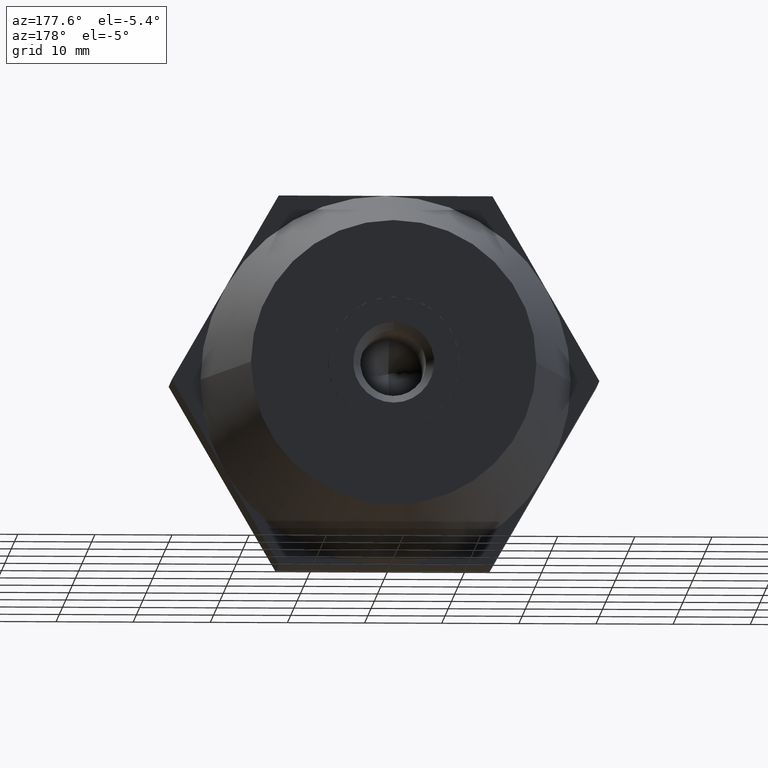
[diagram: clean part render]
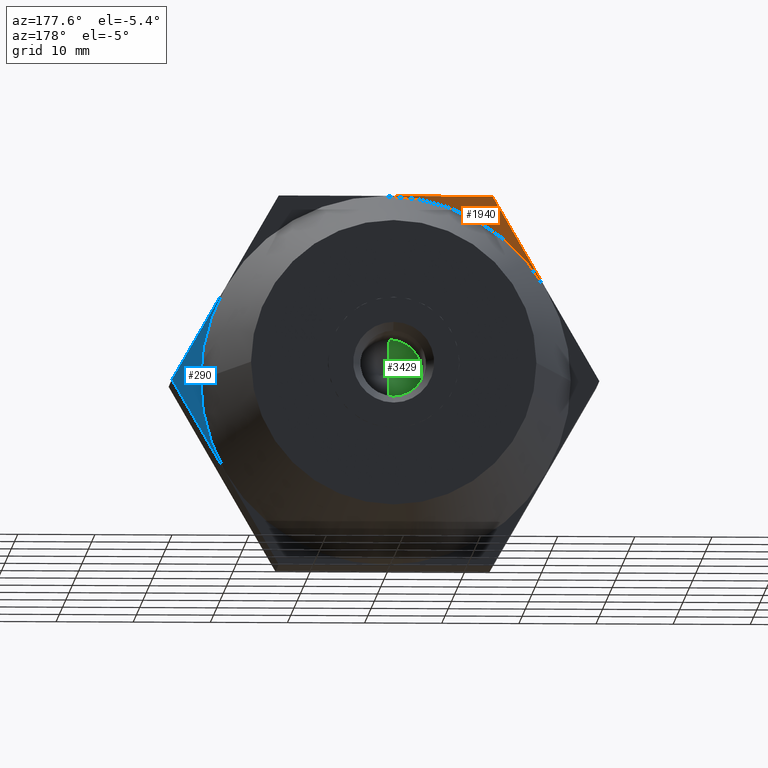
[diagram: same view with three faces highlighted in distinct colors, each labeled with its STEP entity id]
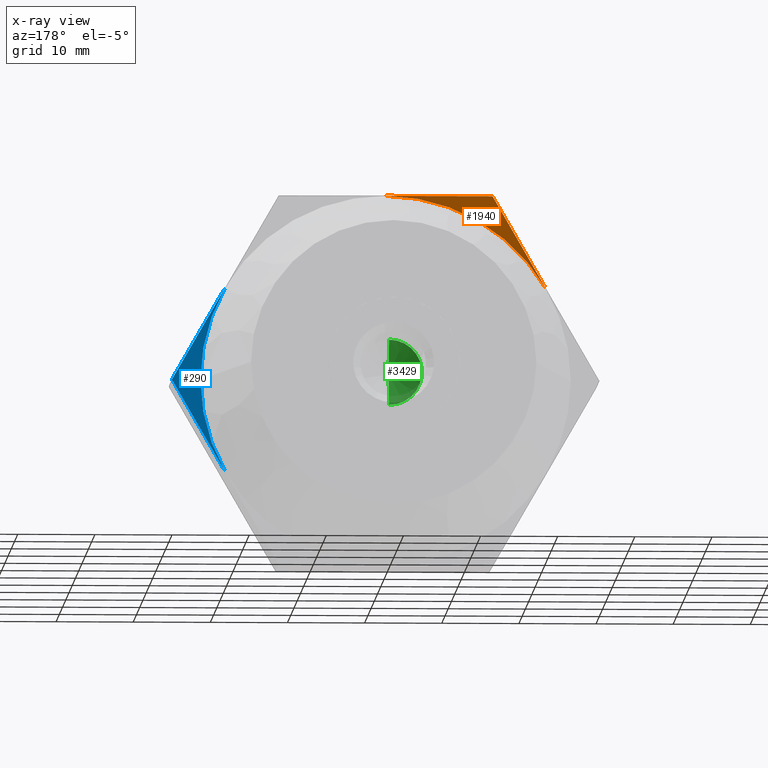
[diagram: x-ray of the same camera — body ghosted, the three highlighted faces saturated]
A machine part, auxiliary view with three faces highlighted in distinct colors.
The next image is the same camera in x-ray (body ghosted, the three faces saturated) — at least one of them is partly hidden behind the body in this view.
Their STEP definitions:

[orange] entity #1940 — the highlighted planar face has unit normal (0, 1, 0).
#68 = ORIENTED_EDGE ( 'NONE', *, *, #995, .F. ) ;
#168 = DIRECTION ( 'NONE',  ( -1.000000000000000000, -1.084202172485504400E-016, 0.0000000000000000000 ) ) ;
#574 = ORIENTED_EDGE ( 'NONE', *, *, #3101, .T. ) ;
#581 = CARTESIAN_POINT ( 'NONE',  ( -13.85640646055101900, 5.000000000000000000, 24.00000000000000000 ) ) ;
#995 = EDGE_CURVE ( 'NONE', #2463, #2596, #1623, .T. ) ;
#1044 = LINE ( 'NONE', #581, #2575 ) ;
#1106 = DIRECTION ( 'NONE',  ( -1.224646799147352000E-016, 1.000000000000000000, 0.0000000000000000000 ) ) ;
#1306 = VERTEX_POINT ( 'NONE', #2998 ) ;
#1409 = CARTESIAN_POINT ( 'NONE',  ( -27.71281292110205300, 5.000000000000000000, 3.597623130494369400E-015 ) ) ;
#1587 = PLANE ( 'NONE',  #1799 ) ;
#1623 = CIRCLE ( 'NONE', #3272, 24.00000000000000000 ) ;
#1630 = FACE_OUTER_BOUND ( 'NONE', #3138, .T. ) ;
#1799 = AXIS2_PLACEMENT_3D ( 'NONE', #1870, #1885, #2502 ) ;
#1838 = DIRECTION ( 'NONE',  ( 1.000000000000000000, 0.0000000000000000000, 1.251928832280965700E-016 ) ) ;
#1870 = CARTESIAN_POINT ( 'NONE',  ( 0.0000000000000000000, 5.000000000000000000, 0.0000000000000000000 ) ) ;
#1882 = CARTESIAN_POINT ( 'NONE',  ( -3.004629197474319600E-015, 5.000000000000000000, 24.00000000000000000 ) ) ;
#1885 = DIRECTION ( 'NONE',  ( 0.0000000000000000000, 1.000000000000000000, 0.0000000000000000000 ) ) ;
#1940 = ADVANCED_FACE ( 'NONE', ( #1630 ), #1587, .T. ) ;
#1987 = LINE ( 'NONE', #1409, #3871 ) ;
#2463 = VERTEX_POINT ( 'NONE', #2726 ) ;
#2502 = DIRECTION ( 'NONE',  ( 0.0000000000000000000, 0.0000000000000000000, 1.000000000000000000 ) ) ;
#2575 = VECTOR ( 'NONE', #1838, 1000.000000000000000 ) ;
#2596 = VERTEX_POINT ( 'NONE', #1882 ) ;
#2726 = CARTESIAN_POINT ( 'NONE',  ( -20.78460969082655300, 5.000000000000000000, 12.00000000000000000 ) ) ;
#2926 = CARTESIAN_POINT ( 'NONE',  ( 3.061616997868379900E-015, 5.000000000000000000, 0.0000000000000000000 ) ) ;
#2942 = DIRECTION ( 'NONE',  ( 0.4999999999999998900, 0.0000000000000000000, 0.8660254037844387100 ) ) ;
#2998 = CARTESIAN_POINT ( 'NONE',  ( -13.85640646055101900, 5.000000000000000000, 24.00000000000000000 ) ) ;
#3101 = EDGE_CURVE ( 'NONE', #2463, #1306, #1987, .T. ) ;
#3138 = EDGE_LOOP ( 'NONE', ( #68, #574, #3891 ) ) ;
#3180 = EDGE_CURVE ( 'NONE', #1306, #2596, #1044, .T. ) ;
#3272 = AXIS2_PLACEMENT_3D ( 'NONE', #2926, #1106, #168 ) ;
#3871 = VECTOR ( 'NONE', #2942, 1000.000000000000000 ) ;
#3891 = ORIENTED_EDGE ( 'NONE', *, *, #3180, .T. ) ;

[blue] entity #290 — the highlighted planar face has unit normal (0, 1, 0).
#37 = VERTEX_POINT ( 'NONE', #467 ) ;
#92 = CARTESIAN_POINT ( 'NONE',  ( 24.00000000000000400, 5.000000000000003600, 0.0000000000000000000 ) ) ;
#145 = CARTESIAN_POINT ( 'NONE',  ( 0.0000000000000000000, 5.000000000000000000, 0.0000000000000000000 ) ) ;
#176 = DIRECTION ( 'NONE',  ( -1.000000000000000000, -1.084202172485504400E-016, 0.0000000000000000000 ) ) ;
#242 = DIRECTION ( 'NONE',  ( -0.4999999999999998900, 0.0000000000000000000, -0.8660254037844387100 ) ) ;
#290 = ADVANCED_FACE ( 'NONE', ( #3295 ), #1967, .T. ) ;
#313 = EDGE_CURVE ( 'NONE', #2299, #2568, #3882, .T. ) ;
#366 = EDGE_CURVE ( 'NONE', #37, #2299, #2666, .T. ) ;
#452 = CARTESIAN_POINT ( 'NONE',  ( 13.85640646055101900, 5.000000000000000000, 24.00000000000000000 ) ) ;
#467 = CARTESIAN_POINT ( 'NONE',  ( 20.78460969082655300, 5.000000000000000000, 12.00000000000000000 ) ) ;
#666 = ORIENTED_EDGE ( 'NONE', *, *, #313, .F. ) ;
#747 = DIRECTION ( 'NONE',  ( 0.4999999999999998900, 0.0000000000000000000, -0.8660254037844387100 ) ) ;
#751 = DIRECTION ( 'NONE',  ( 0.0000000000000000000, 1.000000000000000000, 0.0000000000000000000 ) ) ;
#928 = ORIENTED_EDGE ( 'NONE', *, *, #2723, .T. ) ;
#1088 = LINE ( 'NONE', #452, #3328 ) ;
#1149 = DIRECTION ( 'NONE',  ( -1.000000000000000000, -1.084202172485504400E-016, 0.0000000000000000000 ) ) ;
#1165 = EDGE_CURVE ( 'NONE', #3330, #2568, #3959, .T. ) ;
#1271 = CARTESIAN_POINT ( 'NONE',  ( 20.78460969082650000, 5.000000000000000000, -12.00000000000000000 ) ) ;
#1292 = CARTESIAN_POINT ( 'NONE',  ( 27.71281292110205300, 5.000000000000000000, -1.024206980640409900E-014 ) ) ;
#1370 = AXIS2_PLACEMENT_3D ( 'NONE', #3238, #2318, #176 ) ;
#1520 = CARTESIAN_POINT ( 'NONE',  ( 3.061616997868379900E-015, 5.000000000000000000, 0.0000000000000000000 ) ) ;
#1967 = PLANE ( 'NONE',  #3435 ) ;
#2188 = ORIENTED_EDGE ( 'NONE', *, *, #366, .F. ) ;
#2264 = AXIS2_PLACEMENT_3D ( 'NONE', #1520, #3603, #1149 ) ;
#2299 = VERTEX_POINT ( 'NONE', #92 ) ;
#2318 = DIRECTION ( 'NONE',  ( -1.224646799147352000E-016, 1.000000000000000000, 0.0000000000000000000 ) ) ;
#2394 = EDGE_LOOP ( 'NONE', ( #2188, #928, #3050, #666 ) ) ;
#2568 = VERTEX_POINT ( 'NONE', #1271 ) ;
#2666 = CIRCLE ( 'NONE', #2264, 24.00000000000000000 ) ;
#2723 = EDGE_CURVE ( 'NONE', #37, #3330, #1088, .T. ) ;
#2886 = DIRECTION ( 'NONE',  ( 0.0000000000000000000, 0.0000000000000000000, 1.000000000000000000 ) ) ;
#2946 = VECTOR ( 'NONE', #242, 1000.000000000000000 ) ;
#3050 = ORIENTED_EDGE ( 'NONE', *, *, #1165, .T. ) ;
#3238 = CARTESIAN_POINT ( 'NONE',  ( 3.061616997868379900E-015, 5.000000000000000000, 0.0000000000000000000 ) ) ;
#3252 = CARTESIAN_POINT ( 'NONE',  ( 27.71281292110205300, 5.000000000000000000, -1.024206980640409900E-014 ) ) ;
#3295 = FACE_OUTER_BOUND ( 'NONE', #2394, .T. ) ;
#3328 = VECTOR ( 'NONE', #747, 1000.000000000000000 ) ;
#3330 = VERTEX_POINT ( 'NONE', #1292 ) ;
#3435 = AXIS2_PLACEMENT_3D ( 'NONE', #145, #751, #2886 ) ;
#3603 = DIRECTION ( 'NONE',  ( -1.224646799147352000E-016, 1.000000000000000000, 0.0000000000000000000 ) ) ;
#3882 = CIRCLE ( 'NONE', #1370, 24.00000000000000000 ) ;
#3959 = LINE ( 'NONE', #3252, #2946 ) ;

[green] entity #3429 — the highlighted conical surface has half-angle 59 deg.
#27 = FACE_OUTER_BOUND ( 'NONE', #1678, .T. ) ;
#70 = AXIS2_PLACEMENT_3D ( 'NONE', #1268, #3708, #3084 ) ;
#370 = VECTOR ( 'NONE', #879, 999.9999999999998900 ) ;
#460 = LINE ( 'NONE', #3311, #370 ) ;
#544 = EDGE_CURVE ( 'NONE', #2590, #3008, #1949, .T. ) ;
#879 = DIRECTION ( 'NONE',  ( 0.0000000000000000000, 0.5150380749100549300, 0.8571673007021118900 ) ) ;
#1097 = EDGE_CURVE ( 'NONE', #2474, #2590, #3336, .T. ) ;
#1114 = ORIENTED_EDGE ( 'NONE', *, *, #544, .T. ) ;
#1116 = CARTESIAN_POINT ( 'NONE',  ( 5.204748896376250700E-016, 3.050000000000000300, -4.250000000000000000 ) ) ;
#1268 = CARTESIAN_POINT ( 'NONE',  ( 0.0000000000000000000, 3.050000000000000300, 0.0000000000000000000 ) ) ;
#1678 = EDGE_LOOP ( 'NONE', ( #3701, #2920, #1114 ) ) ;
#1793 = CONICAL_SURFACE ( 'NONE', #70, 4.250000000000000000, 1.029744258676653600 ) ;
#1949 = CIRCLE ( 'NONE', #3848, 4.250000000000000000 ) ;
#2088 = DIRECTION ( 'NONE',  ( 0.0000000000000000000, 1.000000000000000000, 0.0000000000000000000 ) ) ;
#2474 = VERTEX_POINT ( 'NONE', #2713 ) ;
#2590 = VERTEX_POINT ( 'NONE', #3400 ) ;
#2713 = CARTESIAN_POINT ( 'NONE',  ( -4.042230298373044700E-015, 0.4963423691328700000, 0.0000000000000000000 ) ) ;
#2920 = ORIENTED_EDGE ( 'NONE', *, *, #1097, .T. ) ;
#2936 = DIRECTION ( 'NONE',  ( 1.049727191138618200E-016, 0.5150380749100549300, -0.8571673007021118900 ) ) ;
#2976 = CARTESIAN_POINT ( 'NONE',  ( 0.0000000000000000000, 3.050000000000000300, 4.250000000000000000 ) ) ;
#3008 = VERTEX_POINT ( 'NONE', #2976 ) ;
#3025 = CARTESIAN_POINT ( 'NONE',  ( 0.0000000000000000000, 3.050000000000000300, 0.0000000000000000000 ) ) ;
#3084 = DIRECTION ( 'NONE',  ( 0.0000000000000000000, 0.0000000000000000000, 1.000000000000000000 ) ) ;
#3163 = EDGE_CURVE ( 'NONE', #2474, #3008, #460, .T. ) ;
#3311 = CARTESIAN_POINT ( 'NONE',  ( 0.0000000000000000000, 3.050000000000000300, 4.250000000000000000 ) ) ;
#3336 = LINE ( 'NONE', #1116, #3683 ) ;
#3400 = CARTESIAN_POINT ( 'NONE',  ( 5.204748896376250700E-016, 3.050000000000000300, -4.250000000000000000 ) ) ;
#3429 = ADVANCED_FACE ( 'NONE', ( #27 ), #1793, .F. ) ;
#3683 = VECTOR ( 'NONE', #2936, 999.9999999999998900 ) ;
#3701 = ORIENTED_EDGE ( 'NONE', *, *, #3163, .F. ) ;
#3707 = DIRECTION ( 'NONE',  ( 0.0000000000000000000, 0.0000000000000000000, 1.000000000000000000 ) ) ;
#3708 = DIRECTION ( 'NONE',  ( 0.0000000000000000000, 1.000000000000000000, 0.0000000000000000000 ) ) ;
#3848 = AXIS2_PLACEMENT_3D ( 'NONE', #3025, #2088, #3707 ) ;